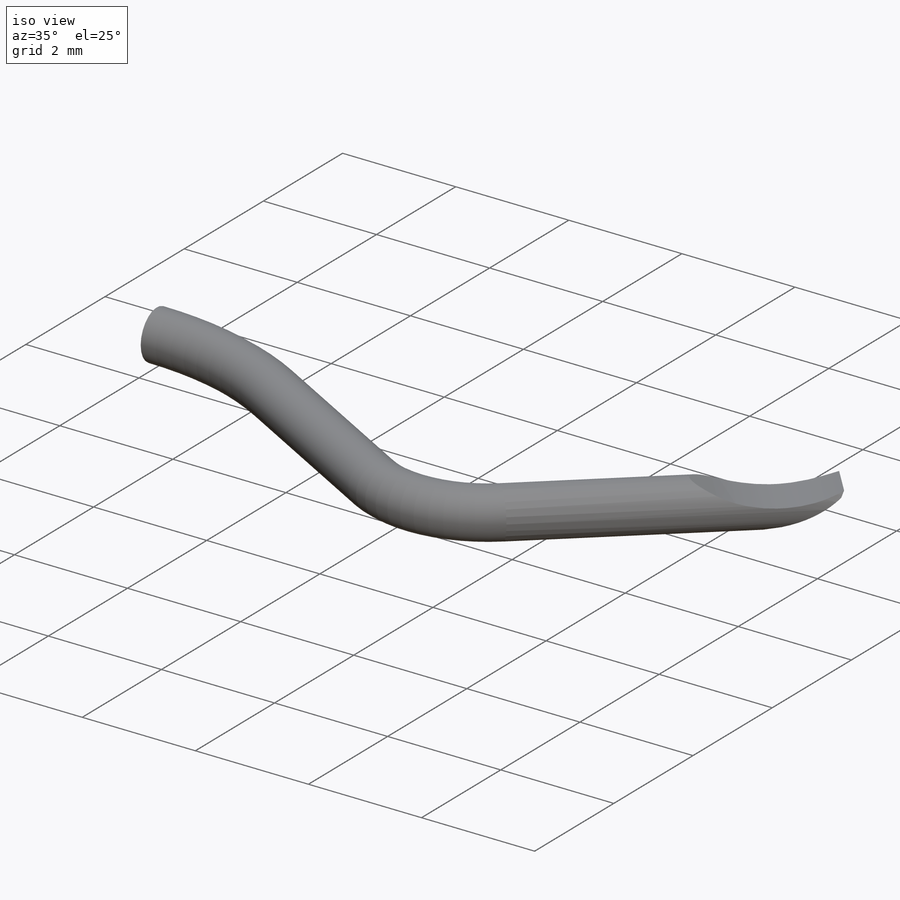
[diagram: iso view]
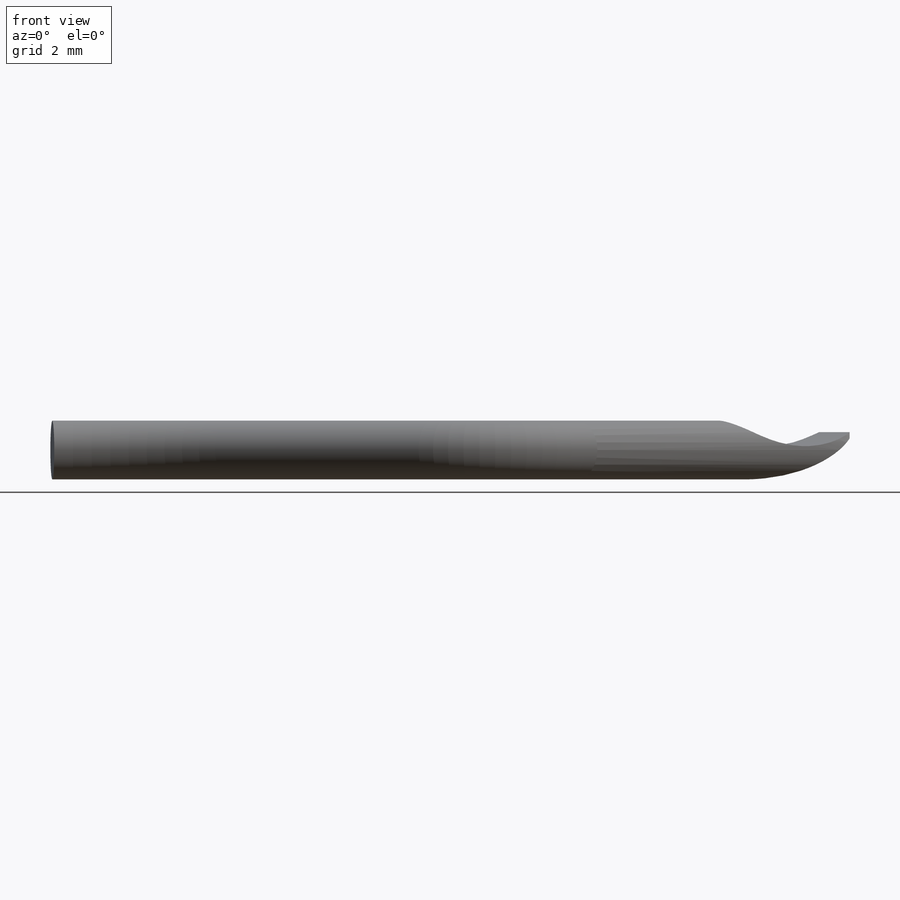
[diagram: front view]
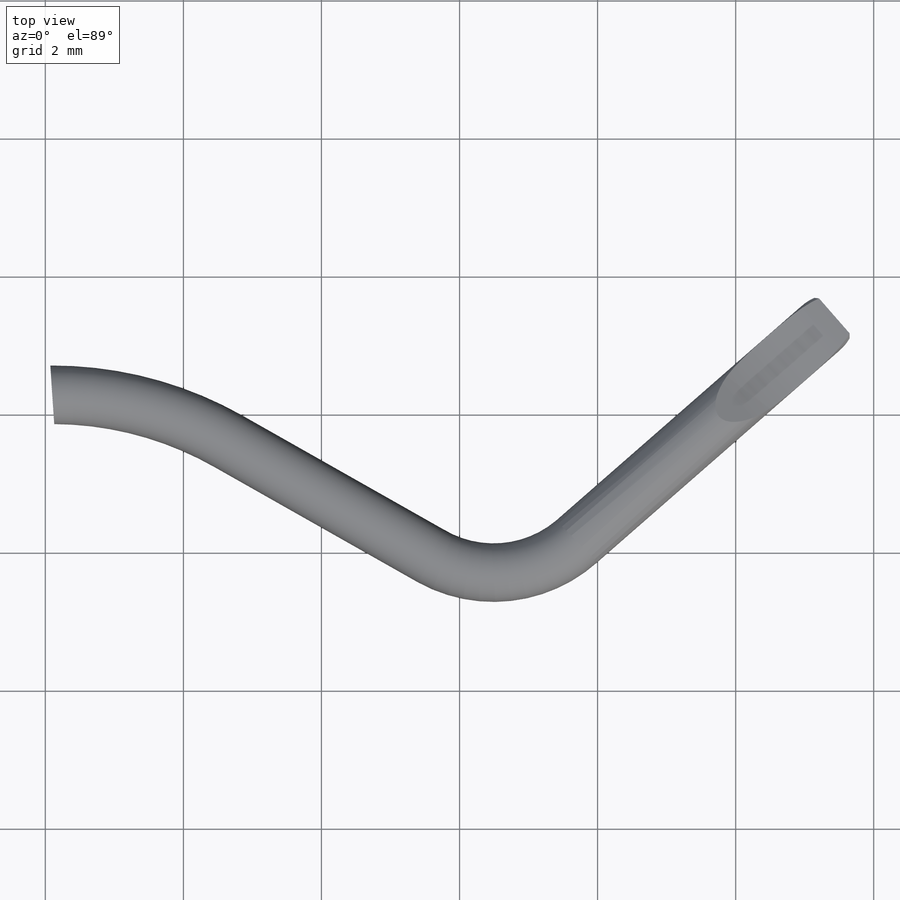
[diagram: top view]
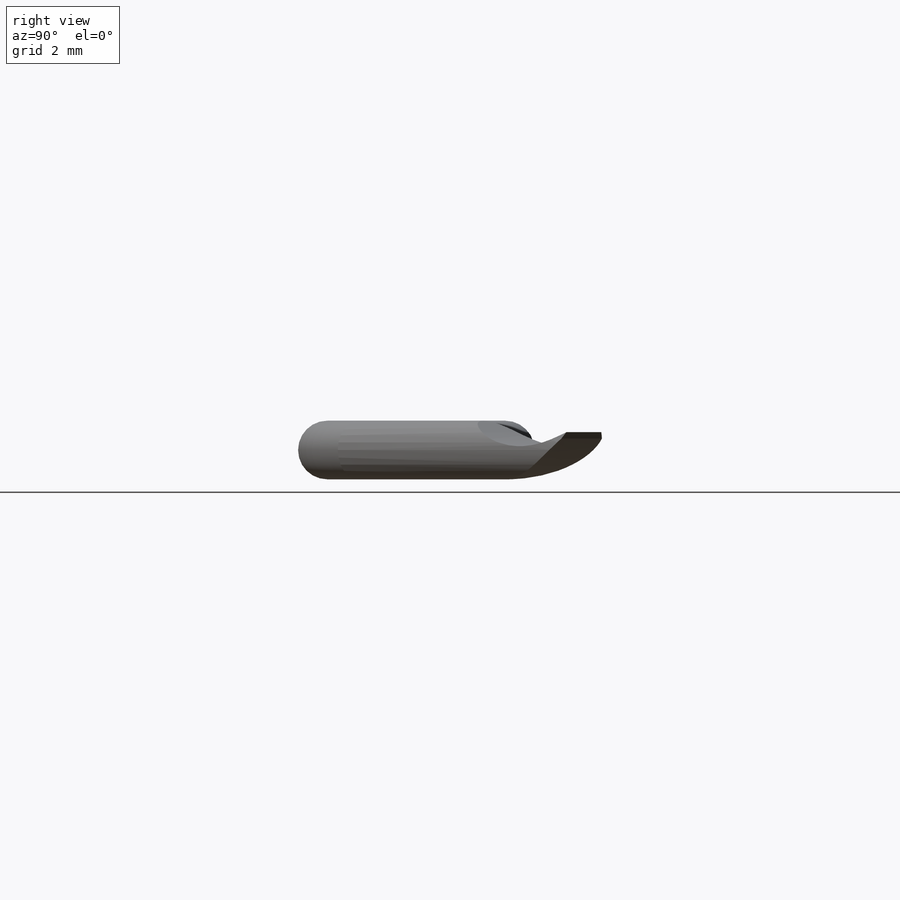
[diagram: right view]
SOLIDWORKS PART (.sldprt)
format: sldprt  version: not decoded by parser v0  size: 13,615,104 bytes
history: native  units: mm
features: sketch x7, plane x7, material x1, sweep x1, revolve x1, cut_extrude x1, mirror x1 (+13 scaffold rows collapsed)
feature tree (32):
  scaffold x13  (default folders/planes/origin — collapsed)
  material  "Material <not specified>"
  sketch  "linear trace"  dims[c1.D1=~20.258584mm c1.D2=~1.468853mm c2.D1=~5.601373mm]
  plane  "Plane1"
  plane  "Plane2"
  plane  "Plane3"
  plane  "Plane4"
  sketch  "Sketch2"  dims[D1=0.85mm]
  sketch  "Sketch3"  dims[D1=1.0mm]
  sketch  "Sketch4"
  sweep  "Sweep4"
  sketch  "Sketch6"  dims[c1.D1=0.5mm c1.D2=1.2mm c1.D3=2.0mm c1.D4=2.5mm c1.D5=~20.258584mm c2.D4=1.8mm c2.D5=2.5mm c2.D6=~4.148991mm]
  revolve  "Revolve1"  Angle=360deg
  plane  "Plane5"
  plane  "Plane6"  Offset=0.5mm
  sketch  "Sketch7"
  sketch  "Sketch Picture2"  dims[D1=~1.808791mm]
  cut_extrude  "Cut-Extrude2"  Depth=10mm
  plane  "Plane7"  Offset=1mm
  mirror  "Mirror1"
decode coverage: 7 of 11 modeling features carry decoded parameters
note: ~ marks probable driven/reference dimensions
note: suppression state not decoded; provenance and decode notes live in map.json
